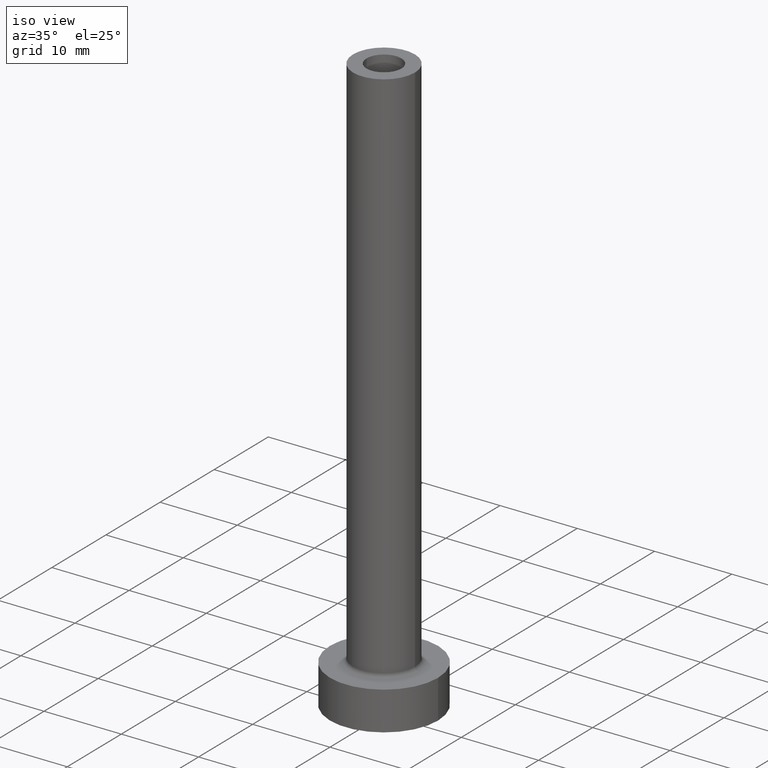
[diagram: clean part render]
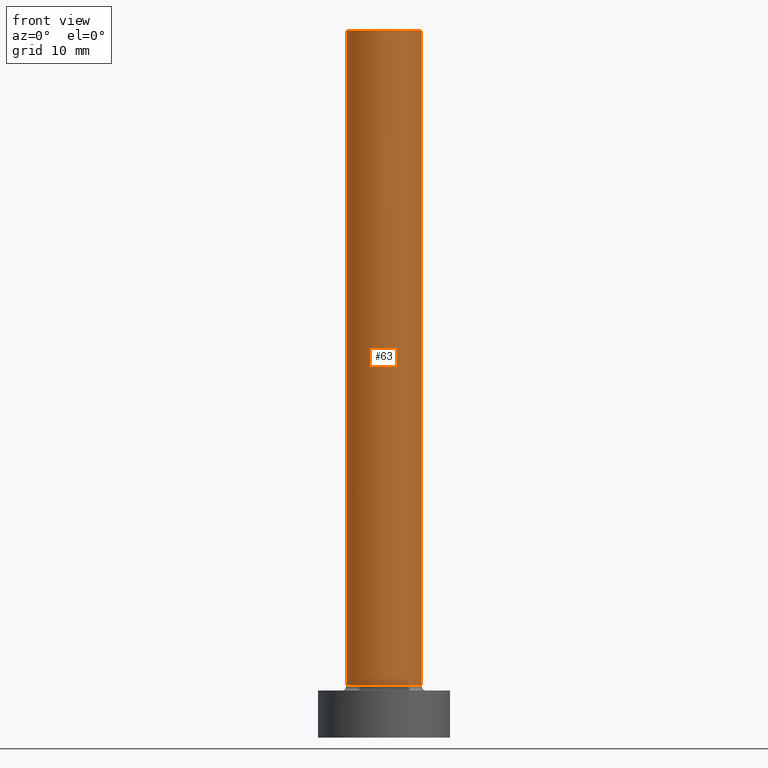
[diagram: tour spotlight — one face highlighted and labeled with its STEP entity id]
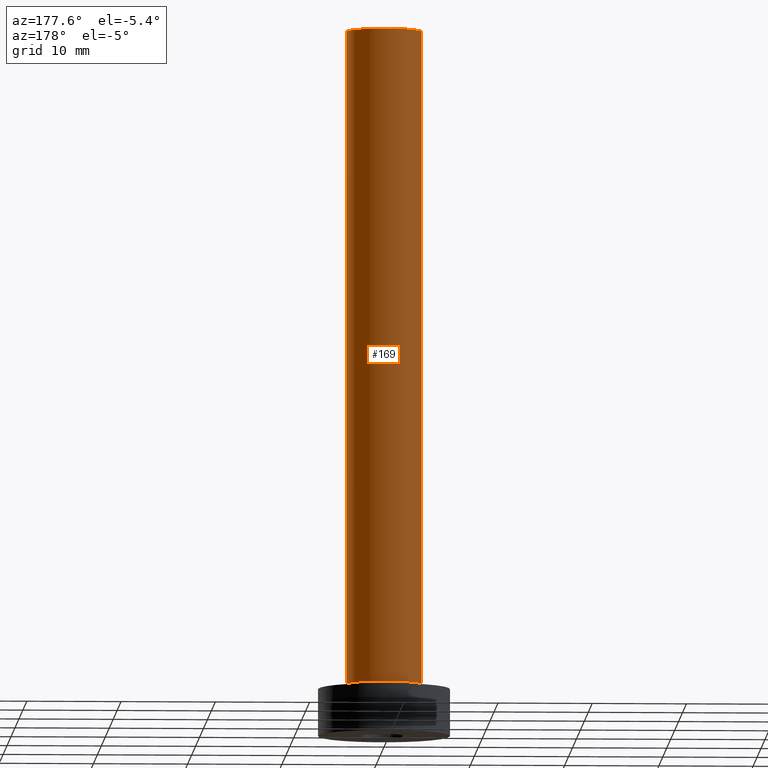
[diagram: tour spotlight — one face highlighted and labeled with its STEP entity id]
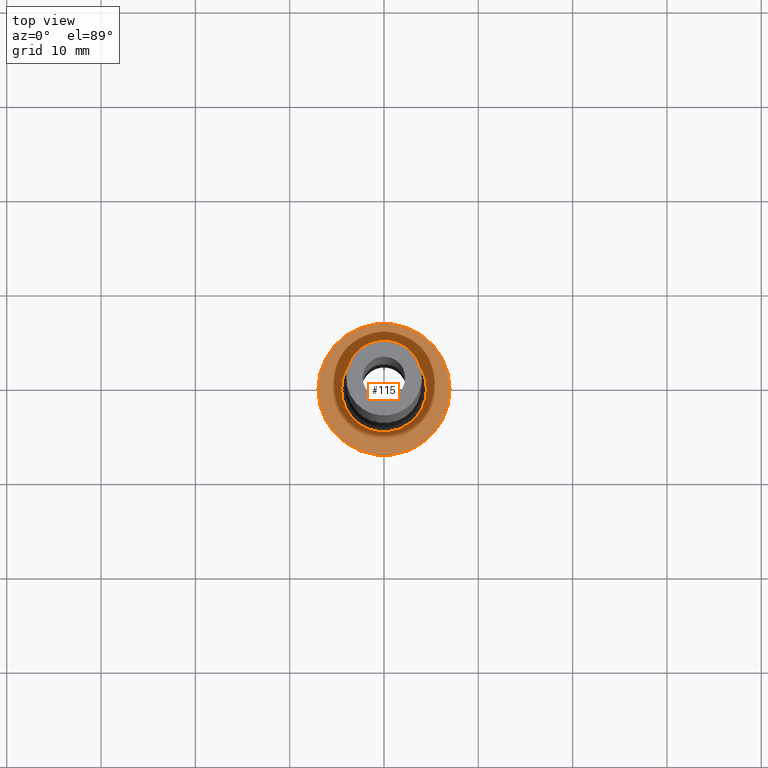
[diagram: tour spotlight — one face highlighted and labeled with its STEP entity id]
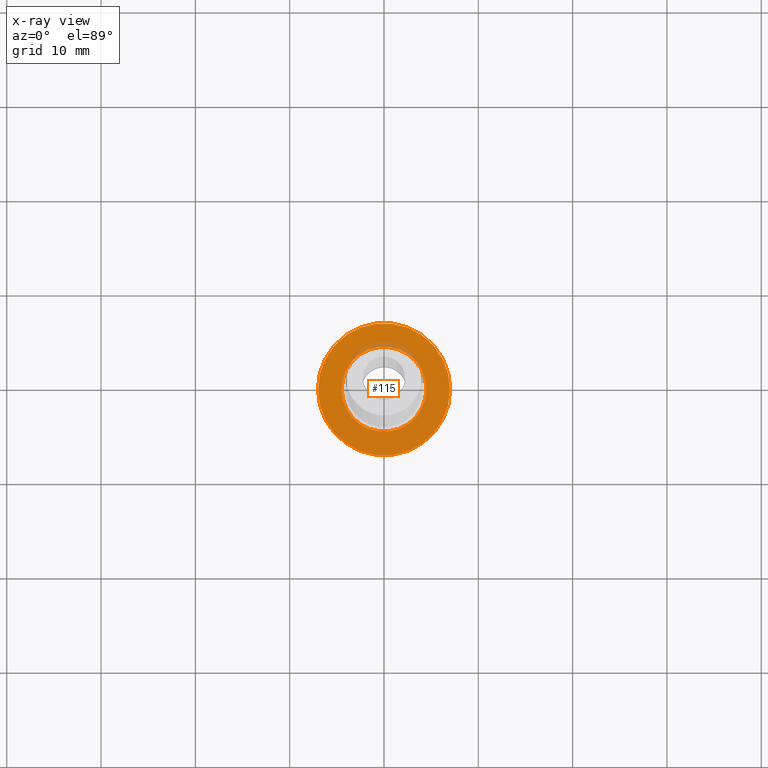
[diagram: x-ray of the same camera — body ghosted, this tour face saturated]
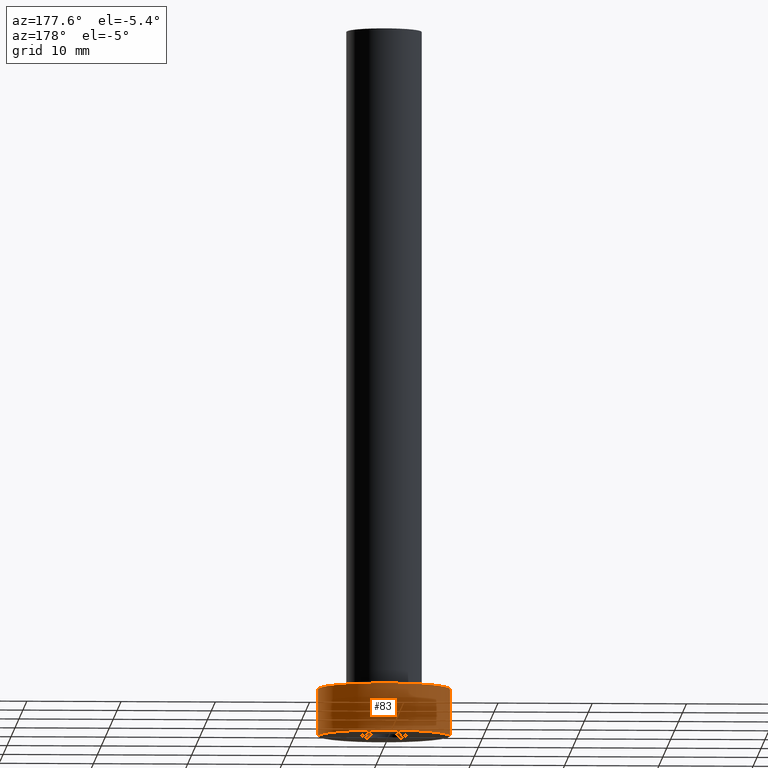
[diagram: tour spotlight — one face highlighted and labeled with its STEP entity id]
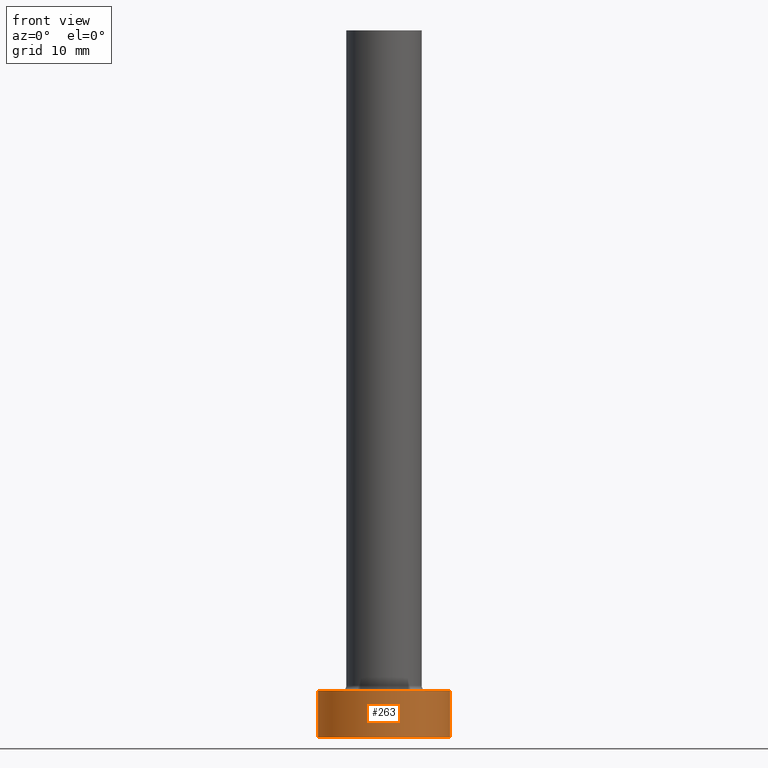
[diagram: tour spotlight — one face highlighted and labeled with its STEP entity id]
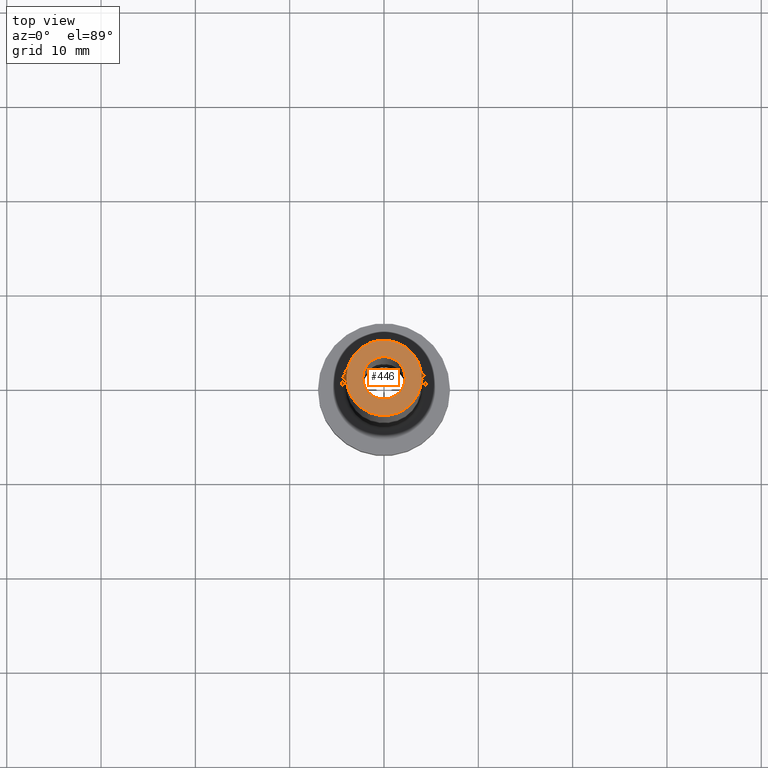
[diagram: tour spotlight — one face highlighted and labeled with its STEP entity id]
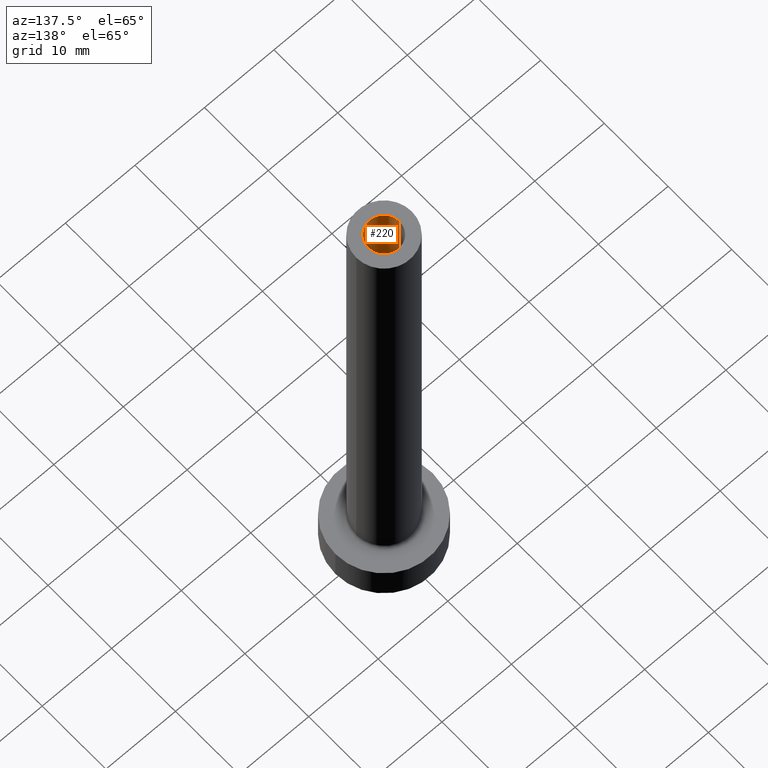
[diagram: tour spotlight — one face highlighted and labeled with its STEP entity id]
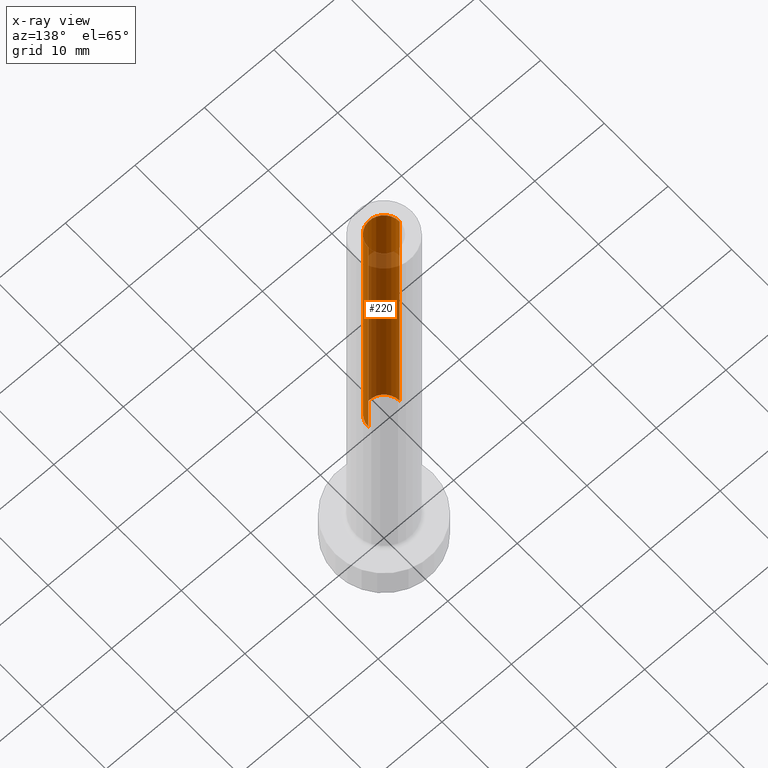
[diagram: x-ray of the same camera — body ghosted, this tour face saturated]
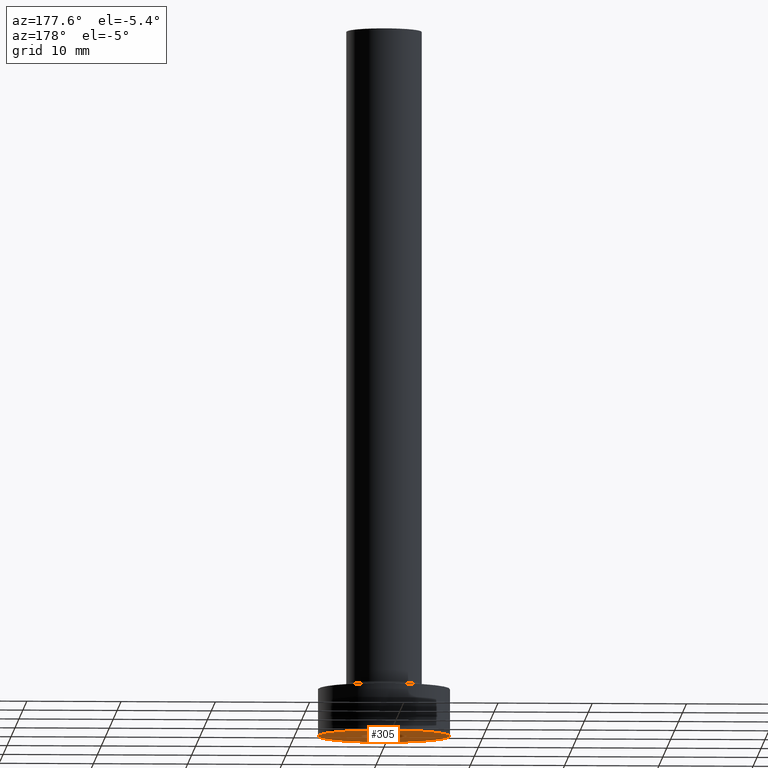
[diagram: tour spotlight — one face highlighted and labeled with its STEP entity id]
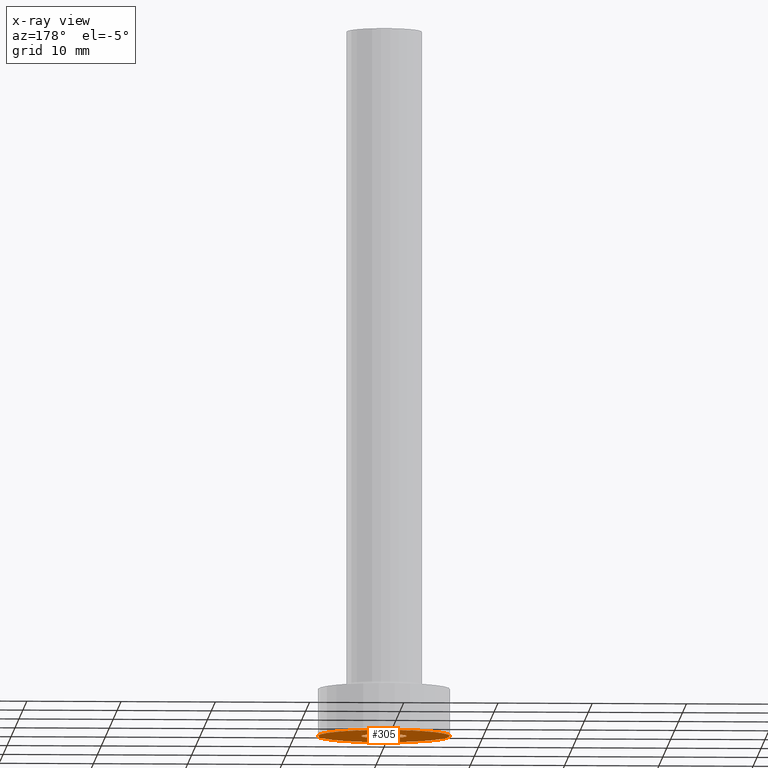
[diagram: x-ray of the same camera — body ghosted, this tour face saturated]
A machine part: a face-by-face anatomy tour. The part has 14 B-rep faces; the first image is the clean iso view, then the 8 largest visible faces are spotlighted one at a time (largest first), each with its STEP entity span.

Face 1 — front view, entity #63. In plain terms, the highlighted cylindrical surface (partial cylindrical patch) has radius 4 mm, axis along (-0, -0, -1).
Definition (entity closure, byte-faithful):
#21 = AXIS2_PLACEMENT_3D ( 'NONE', #275, #96, #95 ) ;
#28 = LINE ( 'NONE', #74, #149 ) ;
#30 = CARTESIAN_POINT ( 'NONE',  ( 4.000000000000000000, 4.898587196589412829E-16, 5.500000000000005329 ) ) ;
#41 = CARTESIAN_POINT ( 'NONE',  ( 0.000000000000000000, 0.000000000000000000, 75.00000000000001421 ) ) ;
#47 = CYLINDRICAL_SURFACE ( 'NONE', #422, 4.000000000000000000 ) ;
#55 = EDGE_CURVE ( 'NONE', #349, #193, #138, .T. ) ;
#63 = ADVANCED_FACE ( 'NONE', ( #378 ), #47, .T. ) ;
#74 = CARTESIAN_POINT ( 'NONE',  ( -4.000000000000000000, 0.000000000000000000, 75.00000000000001421 ) ) ;
#95 = DIRECTION ( 'NONE',  ( 1.000000000000000000, 0.000000000000000000, 0.000000000000000000 ) ) ;
#96 = DIRECTION ( 'NONE',  ( 0.000000000000000000, 0.000000000000000000, 1.000000000000000000 ) ) ;
#110 = ORIENTED_EDGE ( 'NONE', *, *, #136, .F. ) ;
#112 = DIRECTION ( 'NONE',  ( -0.000000000000000000, -0.000000000000000000, -1.000000000000000000 ) ) ;
#123 = CARTESIAN_POINT ( 'NONE',  ( 4.000000000000000000, 4.898587196589412829E-16, 75.00000000000001421 ) ) ;
#136 = EDGE_CURVE ( 'NONE', #182, #449, #414, .T. ) ;
#138 = CIRCLE ( 'NONE', #391, 4.000000000000000000 ) ;
#149 = VECTOR ( 'NONE', #428, 1000.000000000000000 ) ;
#182 = VERTEX_POINT ( 'NONE', #359 ) ;
#187 = EDGE_LOOP ( 'NONE', ( #427, #110, #240, #440 ) ) ;
#191 = VECTOR ( 'NONE', #112, 1000.000000000000000 ) ;
#193 = VERTEX_POINT ( 'NONE', #30 ) ;
#200 = CARTESIAN_POINT ( 'NONE',  ( 0.000000000000000000, 0.000000000000000000, 5.500000000000005329 ) ) ;
#202 = DIRECTION ( 'NONE',  ( 0.000000000000000000, 0.000000000000000000, 1.000000000000000000 ) ) ;
#240 = ORIENTED_EDGE ( 'NONE', *, *, #277, .T. ) ;
#275 = CARTESIAN_POINT ( 'NONE',  ( 0.000000000000000000, 0.000000000000000000, 75.00000000000001421 ) ) ;
#277 = EDGE_CURVE ( 'NONE', #182, #349, #28, .T. ) ;
#282 = CARTESIAN_POINT ( 'NONE',  ( 4.000000000000000000, 4.898587196589412829E-16, 75.00000000000001421 ) ) ;
#315 = LINE ( 'NONE', #282, #191 ) ;
#332 = DIRECTION ( 'NONE',  ( -1.000000000000000000, 0.000000000000000000, 0.000000000000000000 ) ) ;
#336 = DIRECTION ( 'NONE',  ( -0.000000000000000000, -0.000000000000000000, -1.000000000000000000 ) ) ;
#339 = EDGE_CURVE ( 'NONE', #449, #193, #315, .T. ) ;
#345 = DIRECTION ( 'NONE',  ( 1.000000000000000000, 0.000000000000000000, 0.000000000000000000 ) ) ;
#349 = VERTEX_POINT ( 'NONE', #401 ) ;
#359 = CARTESIAN_POINT ( 'NONE',  ( -4.000000000000000000, 0.000000000000000000, 75.00000000000001421 ) ) ;
#378 = FACE_OUTER_BOUND ( 'NONE', #187, .T. ) ;
#391 = AXIS2_PLACEMENT_3D ( 'NONE', #200, #202, #345 ) ;
#401 = CARTESIAN_POINT ( 'NONE',  ( -4.000000000000000000, 0.000000000000000000, 5.500000000000005329 ) ) ;
#414 = CIRCLE ( 'NONE', #21, 4.000000000000000000 ) ;
#422 = AXIS2_PLACEMENT_3D ( 'NONE', #41, #336, #332 ) ;
#427 = ORIENTED_EDGE ( 'NONE', *, *, #339, .F. ) ;
#428 = DIRECTION ( 'NONE',  ( -0.000000000000000000, -0.000000000000000000, -1.000000000000000000 ) ) ;
#440 = ORIENTED_EDGE ( 'NONE', *, *, #55, .T. ) ;
#449 = VERTEX_POINT ( 'NONE', #123 ) ;

Face 2 — auxiliary view, entity #169. In plain terms, the highlighted cylindrical surface (partial cylindrical patch) has radius 4 mm, axis along (-0, -0, -1).
Definition (entity closure, byte-faithful):
#5 = CARTESIAN_POINT ( 'NONE',  ( 0.000000000000000000, 0.000000000000000000, 5.500000000000005329 ) ) ;
#17 = CARTESIAN_POINT ( 'NONE',  ( 0.000000000000000000, 0.000000000000000000, 75.00000000000001421 ) ) ;
#28 = LINE ( 'NONE', #74, #149 ) ;
#30 = CARTESIAN_POINT ( 'NONE',  ( 4.000000000000000000, 4.898587196589412829E-16, 5.500000000000005329 ) ) ;
#40 = AXIS2_PLACEMENT_3D ( 'NONE', #17, #416, #374 ) ;
#44 = ORIENTED_EDGE ( 'NONE', *, *, #224, .T. ) ;
#61 = EDGE_CURVE ( 'NONE', #449, #182, #206, .T. ) ;
#65 = CARTESIAN_POINT ( 'NONE',  ( 0.000000000000000000, 0.000000000000000000, 75.00000000000001421 ) ) ;
#70 = CYLINDRICAL_SURFACE ( 'NONE', #324, 4.000000000000000000 ) ;
#74 = CARTESIAN_POINT ( 'NONE',  ( -4.000000000000000000, 0.000000000000000000, 75.00000000000001421 ) ) ;
#100 = AXIS2_PLACEMENT_3D ( 'NONE', #5, #317, #214 ) ;
#112 = DIRECTION ( 'NONE',  ( -0.000000000000000000, -0.000000000000000000, -1.000000000000000000 ) ) ;
#123 = CARTESIAN_POINT ( 'NONE',  ( 4.000000000000000000, 4.898587196589412829E-16, 75.00000000000001421 ) ) ;
#149 = VECTOR ( 'NONE', #428, 1000.000000000000000 ) ;
#169 = ADVANCED_FACE ( 'NONE', ( #389 ), #70, .T. ) ;
#182 = VERTEX_POINT ( 'NONE', #359 ) ;
#190 = CIRCLE ( 'NONE', #100, 4.000000000000000000 ) ;
#191 = VECTOR ( 'NONE', #112, 1000.000000000000000 ) ;
#193 = VERTEX_POINT ( 'NONE', #30 ) ;
#194 = ORIENTED_EDGE ( 'NONE', *, *, #339, .T. ) ;
#206 = CIRCLE ( 'NONE', #40, 4.000000000000000000 ) ;
#214 = DIRECTION ( 'NONE',  ( 1.000000000000000000, 0.000000000000000000, 0.000000000000000000 ) ) ;
#224 = EDGE_CURVE ( 'NONE', #193, #349, #190, .T. ) ;
#226 = DIRECTION ( 'NONE',  ( -1.000000000000000000, 0.000000000000000000, 0.000000000000000000 ) ) ;
#228 = EDGE_LOOP ( 'NONE', ( #294, #194, #44, #413 ) ) ;
#277 = EDGE_CURVE ( 'NONE', #182, #349, #28, .T. ) ;
#282 = CARTESIAN_POINT ( 'NONE',  ( 4.000000000000000000, 4.898587196589412829E-16, 75.00000000000001421 ) ) ;
#294 = ORIENTED_EDGE ( 'NONE', *, *, #61, .F. ) ;
#315 = LINE ( 'NONE', #282, #191 ) ;
#317 = DIRECTION ( 'NONE',  ( 0.000000000000000000, 0.000000000000000000, 1.000000000000000000 ) ) ;
#322 = DIRECTION ( 'NONE',  ( -0.000000000000000000, -0.000000000000000000, -1.000000000000000000 ) ) ;
#324 = AXIS2_PLACEMENT_3D ( 'NONE', #65, #322, #226 ) ;
#339 = EDGE_CURVE ( 'NONE', #449, #193, #315, .T. ) ;
#349 = VERTEX_POINT ( 'NONE', #401 ) ;
#359 = CARTESIAN_POINT ( 'NONE',  ( -4.000000000000000000, 0.000000000000000000, 75.00000000000001421 ) ) ;
#374 = DIRECTION ( 'NONE',  ( 1.000000000000000000, 0.000000000000000000, 0.000000000000000000 ) ) ;
#389 = FACE_OUTER_BOUND ( 'NONE', #228, .T. ) ;
#401 = CARTESIAN_POINT ( 'NONE',  ( -4.000000000000000000, 0.000000000000000000, 5.500000000000005329 ) ) ;
#413 = ORIENTED_EDGE ( 'NONE', *, *, #277, .F. ) ;
#416 = DIRECTION ( 'NONE',  ( 0.000000000000000000, 0.000000000000000000, 1.000000000000000000 ) ) ;
#428 = DIRECTION ( 'NONE',  ( -0.000000000000000000, -0.000000000000000000, -1.000000000000000000 ) ) ;
#449 = VERTEX_POINT ( 'NONE', #123 ) ;

Face 3 — top view, entity #115. An x-ray twin of the same camera follows (body ghosted, this face saturated) — the face is partly hidden behind the body. In plain terms, the highlighted planar face has unit normal (0, 0, 1).
Definition (entity closure, byte-faithful):
#4 = CARTESIAN_POINT ( 'NONE',  ( 0.000000000000000000, 0.000000000000000000, 5.000000000000000000 ) ) ;
#22 = AXIS2_PLACEMENT_3D ( 'NONE', #36, #147, #142 ) ;
#24 = ORIENTED_EDGE ( 'NONE', *, *, #232, .T. ) ;
#36 = CARTESIAN_POINT ( 'NONE',  ( 0.000000000000000000, 0.000000000000000000, 5.000000000000000000 ) ) ;
#45 = AXIS2_PLACEMENT_3D ( 'NONE', #285, #460, #435 ) ;
#62 = FACE_OUTER_BOUND ( 'NONE', #355, .T. ) ;
#92 = DIRECTION ( 'NONE',  ( 0.000000000000000000, 0.000000000000000000, 1.000000000000000000 ) ) ;
#115 = ADVANCED_FACE ( 'NONE', ( #419, #62 ), #310, .T. ) ;
#119 = CARTESIAN_POINT ( 'NONE',  ( -4.500000000000000888, 5.510910596163088569E-16, 5.000000000000002665 ) ) ;
#128 = AXIS2_PLACEMENT_3D ( 'NONE', #250, #181, #363 ) ;
#139 = DIRECTION ( 'NONE',  ( 1.000000000000000000, 0.000000000000000000, -0.000000000000000000 ) ) ;
#141 = CIRCLE ( 'NONE', #377, 4.500000000000000888 ) ;
#142 = DIRECTION ( 'NONE',  ( 1.000000000000000000, 0.000000000000000000, 0.000000000000000000 ) ) ;
#147 = DIRECTION ( 'NONE',  ( -0.000000000000000000, -0.000000000000000000, -1.000000000000000000 ) ) ;
#163 = DIRECTION ( 'NONE',  ( 1.000000000000000000, 0.000000000000000000, 0.000000000000000000 ) ) ;
#172 = CARTESIAN_POINT ( 'NONE',  ( 0.000000000000000000, 0.000000000000000000, 5.000000000000000000 ) ) ;
#181 = DIRECTION ( 'NONE',  ( 0.000000000000000000, 0.000000000000000000, 1.000000000000000000 ) ) ;
#189 = VERTEX_POINT ( 'NONE', #426 ) ;
#197 = EDGE_CURVE ( 'NONE', #436, #189, #280, .T. ) ;
#205 = EDGE_CURVE ( 'NONE', #189, #436, #356, .T. ) ;
#209 = ORIENTED_EDGE ( 'NONE', *, *, #385, .T. ) ;
#210 = AXIS2_PLACEMENT_3D ( 'NONE', #172, #92, #139 ) ;
#232 = EDGE_CURVE ( 'NONE', #283, #396, #364, .T. ) ;
#250 = CARTESIAN_POINT ( 'NONE',  ( 0.000000000000000000, 0.000000000000000000, 5.000000000000000000 ) ) ;
#251 = ORIENTED_EDGE ( 'NONE', *, *, #205, .T. ) ;
#257 = CARTESIAN_POINT ( 'NONE',  ( -7.000000000000000000, 0.000000000000000000, 5.000000000000000000 ) ) ;
#280 = CIRCLE ( 'NONE', #45, 7.000000000000000000 ) ;
#283 = VERTEX_POINT ( 'NONE', #119 ) ;
#285 = CARTESIAN_POINT ( 'NONE',  ( 0.000000000000000000, 0.000000000000000000, 5.000000000000000000 ) ) ;
#286 = EDGE_LOOP ( 'NONE', ( #209, #24 ) ) ;
#291 = DIRECTION ( 'NONE',  ( -0.000000000000000000, -0.000000000000000000, -1.000000000000000000 ) ) ;
#302 = CARTESIAN_POINT ( 'NONE',  ( 4.500000000000000888, 0.000000000000000000, 5.000000000000002665 ) ) ;
#310 = PLANE ( 'NONE',  #210 ) ;
#355 = EDGE_LOOP ( 'NONE', ( #393, #251 ) ) ;
#356 = CIRCLE ( 'NONE', #128, 7.000000000000000000 ) ;
#363 = DIRECTION ( 'NONE',  ( 1.000000000000000000, 0.000000000000000000, 0.000000000000000000 ) ) ;
#364 = CIRCLE ( 'NONE', #22, 4.500000000000000888 ) ;
#377 = AXIS2_PLACEMENT_3D ( 'NONE', #4, #291, #163 ) ;
#385 = EDGE_CURVE ( 'NONE', #396, #283, #141, .T. ) ;
#393 = ORIENTED_EDGE ( 'NONE', *, *, #197, .T. ) ;
#396 = VERTEX_POINT ( 'NONE', #302 ) ;
#419 = FACE_BOUND ( 'NONE', #286, .T. ) ;
#426 = CARTESIAN_POINT ( 'NONE',  ( 7.000000000000000000, 8.572527594031473190E-16, 5.000000000000000000 ) ) ;
#435 = DIRECTION ( 'NONE',  ( 1.000000000000000000, 0.000000000000000000, 0.000000000000000000 ) ) ;
#436 = VERTEX_POINT ( 'NONE', #257 ) ;
#460 = DIRECTION ( 'NONE',  ( 0.000000000000000000, 0.000000000000000000, 1.000000000000000000 ) ) ;

Face 4 — auxiliary view, entity #83. In plain terms, the highlighted cylindrical surface (partial cylindrical patch) has radius 7 mm, axis along (-0, -0, -1).
Definition (entity closure, byte-faithful):
#16 = CYLINDRICAL_SURFACE ( 'NONE', #253, 7.000000000000000000 ) ;
#26 = ORIENTED_EDGE ( 'NONE', *, *, #243, .T. ) ;
#29 = CARTESIAN_POINT ( 'NONE',  ( 7.000000000000000000, 8.572527594031473190E-16, 0.000000000000000000 ) ) ;
#83 = ADVANCED_FACE ( 'NONE', ( #344 ), #16, .T. ) ;
#93 = AXIS2_PLACEMENT_3D ( 'NONE', #103, #218, #192 ) ;
#98 = CARTESIAN_POINT ( 'NONE',  ( 7.000000000000000000, 8.572527594031473190E-16, 5.000000000000000000 ) ) ;
#101 = CIRCLE ( 'NONE', #93, 7.000000000000000000 ) ;
#103 = CARTESIAN_POINT ( 'NONE',  ( 0.000000000000000000, 0.000000000000000000, 0.000000000000000000 ) ) ;
#105 = EDGE_CURVE ( 'NONE', #436, #213, #387, .T. ) ;
#128 = AXIS2_PLACEMENT_3D ( 'NONE', #250, #181, #363 ) ;
#154 = ORIENTED_EDGE ( 'NONE', *, *, #205, .F. ) ;
#161 = DIRECTION ( 'NONE',  ( -0.000000000000000000, -0.000000000000000000, -1.000000000000000000 ) ) ;
#166 = EDGE_LOOP ( 'NONE', ( #154, #244, #26, #399 ) ) ;
#181 = DIRECTION ( 'NONE',  ( 0.000000000000000000, 0.000000000000000000, 1.000000000000000000 ) ) ;
#189 = VERTEX_POINT ( 'NONE', #426 ) ;
#192 = DIRECTION ( 'NONE',  ( 1.000000000000000000, 0.000000000000000000, 0.000000000000000000 ) ) ;
#205 = EDGE_CURVE ( 'NONE', #189, #436, #356, .T. ) ;
#208 = DIRECTION ( 'NONE',  ( -0.000000000000000000, -0.000000000000000000, -1.000000000000000000 ) ) ;
#212 = DIRECTION ( 'NONE',  ( -0.000000000000000000, -0.000000000000000000, -1.000000000000000000 ) ) ;
#213 = VERTEX_POINT ( 'NONE', #425 ) ;
#218 = DIRECTION ( 'NONE',  ( 0.000000000000000000, 0.000000000000000000, 1.000000000000000000 ) ) ;
#237 = VECTOR ( 'NONE', #208, 1000.000000000000000 ) ;
#243 = EDGE_CURVE ( 'NONE', #362, #213, #101, .T. ) ;
#244 = ORIENTED_EDGE ( 'NONE', *, *, #298, .T. ) ;
#250 = CARTESIAN_POINT ( 'NONE',  ( 0.000000000000000000, 0.000000000000000000, 5.000000000000000000 ) ) ;
#253 = AXIS2_PLACEMENT_3D ( 'NONE', #269, #161, #412 ) ;
#257 = CARTESIAN_POINT ( 'NONE',  ( -7.000000000000000000, 0.000000000000000000, 5.000000000000000000 ) ) ;
#269 = CARTESIAN_POINT ( 'NONE',  ( 0.000000000000000000, 0.000000000000000000, 5.000000000000000000 ) ) ;
#298 = EDGE_CURVE ( 'NONE', #189, #362, #351, .T. ) ;
#344 = FACE_OUTER_BOUND ( 'NONE', #166, .T. ) ;
#351 = LINE ( 'NONE', #98, #432 ) ;
#356 = CIRCLE ( 'NONE', #128, 7.000000000000000000 ) ;
#362 = VERTEX_POINT ( 'NONE', #29 ) ;
#363 = DIRECTION ( 'NONE',  ( 1.000000000000000000, 0.000000000000000000, 0.000000000000000000 ) ) ;
#382 = CARTESIAN_POINT ( 'NONE',  ( -7.000000000000000000, 0.000000000000000000, 5.000000000000000000 ) ) ;
#387 = LINE ( 'NONE', #382, #237 ) ;
#399 = ORIENTED_EDGE ( 'NONE', *, *, #105, .F. ) ;
#412 = DIRECTION ( 'NONE',  ( -1.000000000000000000, 0.000000000000000000, 0.000000000000000000 ) ) ;
#425 = CARTESIAN_POINT ( 'NONE',  ( -7.000000000000000000, 0.000000000000000000, 0.000000000000000000 ) ) ;
#426 = CARTESIAN_POINT ( 'NONE',  ( 7.000000000000000000, 8.572527594031473190E-16, 5.000000000000000000 ) ) ;
#432 = VECTOR ( 'NONE', #212, 1000.000000000000000 ) ;
#436 = VERTEX_POINT ( 'NONE', #257 ) ;

Face 5 — front view, entity #263. In plain terms, the highlighted cylindrical surface (partial cylindrical patch) has radius 7 mm, axis along (-0, -0, -1).
Definition (entity closure, byte-faithful):
#29 = CARTESIAN_POINT ( 'NONE',  ( 7.000000000000000000, 8.572527594031473190E-16, 0.000000000000000000 ) ) ;
#45 = AXIS2_PLACEMENT_3D ( 'NONE', #285, #460, #435 ) ;
#60 = AXIS2_PLACEMENT_3D ( 'NONE', #384, #392, #328 ) ;
#71 = ORIENTED_EDGE ( 'NONE', *, *, #197, .F. ) ;
#73 = EDGE_LOOP ( 'NONE', ( #325, #71, #442, #341 ) ) ;
#98 = CARTESIAN_POINT ( 'NONE',  ( 7.000000000000000000, 8.572527594031473190E-16, 5.000000000000000000 ) ) ;
#105 = EDGE_CURVE ( 'NONE', #436, #213, #387, .T. ) ;
#140 = CIRCLE ( 'NONE', #60, 7.000000000000000000 ) ;
#165 = EDGE_CURVE ( 'NONE', #213, #362, #140, .T. ) ;
#177 = AXIS2_PLACEMENT_3D ( 'NONE', #289, #358, #403 ) ;
#189 = VERTEX_POINT ( 'NONE', #426 ) ;
#197 = EDGE_CURVE ( 'NONE', #436, #189, #280, .T. ) ;
#208 = DIRECTION ( 'NONE',  ( -0.000000000000000000, -0.000000000000000000, -1.000000000000000000 ) ) ;
#212 = DIRECTION ( 'NONE',  ( -0.000000000000000000, -0.000000000000000000, -1.000000000000000000 ) ) ;
#213 = VERTEX_POINT ( 'NONE', #425 ) ;
#216 = CYLINDRICAL_SURFACE ( 'NONE', #177, 7.000000000000000000 ) ;
#237 = VECTOR ( 'NONE', #208, 1000.000000000000000 ) ;
#247 = FACE_OUTER_BOUND ( 'NONE', #73, .T. ) ;
#257 = CARTESIAN_POINT ( 'NONE',  ( -7.000000000000000000, 0.000000000000000000, 5.000000000000000000 ) ) ;
#263 = ADVANCED_FACE ( 'NONE', ( #247 ), #216, .T. ) ;
#280 = CIRCLE ( 'NONE', #45, 7.000000000000000000 ) ;
#285 = CARTESIAN_POINT ( 'NONE',  ( 0.000000000000000000, 0.000000000000000000, 5.000000000000000000 ) ) ;
#289 = CARTESIAN_POINT ( 'NONE',  ( 0.000000000000000000, 0.000000000000000000, 5.000000000000000000 ) ) ;
#298 = EDGE_CURVE ( 'NONE', #189, #362, #351, .T. ) ;
#325 = ORIENTED_EDGE ( 'NONE', *, *, #298, .F. ) ;
#328 = DIRECTION ( 'NONE',  ( 1.000000000000000000, 0.000000000000000000, 0.000000000000000000 ) ) ;
#341 = ORIENTED_EDGE ( 'NONE', *, *, #165, .T. ) ;
#351 = LINE ( 'NONE', #98, #432 ) ;
#358 = DIRECTION ( 'NONE',  ( -0.000000000000000000, -0.000000000000000000, -1.000000000000000000 ) ) ;
#362 = VERTEX_POINT ( 'NONE', #29 ) ;
#382 = CARTESIAN_POINT ( 'NONE',  ( -7.000000000000000000, 0.000000000000000000, 5.000000000000000000 ) ) ;
#384 = CARTESIAN_POINT ( 'NONE',  ( 0.000000000000000000, 0.000000000000000000, 0.000000000000000000 ) ) ;
#387 = LINE ( 'NONE', #382, #237 ) ;
#392 = DIRECTION ( 'NONE',  ( 0.000000000000000000, 0.000000000000000000, 1.000000000000000000 ) ) ;
#403 = DIRECTION ( 'NONE',  ( -1.000000000000000000, 0.000000000000000000, 0.000000000000000000 ) ) ;
#425 = CARTESIAN_POINT ( 'NONE',  ( -7.000000000000000000, 0.000000000000000000, 0.000000000000000000 ) ) ;
#426 = CARTESIAN_POINT ( 'NONE',  ( 7.000000000000000000, 8.572527594031473190E-16, 5.000000000000000000 ) ) ;
#432 = VECTOR ( 'NONE', #212, 1000.000000000000000 ) ;
#435 = DIRECTION ( 'NONE',  ( 1.000000000000000000, 0.000000000000000000, 0.000000000000000000 ) ) ;
#436 = VERTEX_POINT ( 'NONE', #257 ) ;
#442 = ORIENTED_EDGE ( 'NONE', *, *, #105, .T. ) ;
#460 = DIRECTION ( 'NONE',  ( 0.000000000000000000, 0.000000000000000000, 1.000000000000000000 ) ) ;

Face 6 — top view, entity #446. In plain terms, the highlighted planar face has unit normal (0, 0, 1).
Definition (entity closure, byte-faithful):
#17 = CARTESIAN_POINT ( 'NONE',  ( 0.000000000000000000, 0.000000000000000000, 75.00000000000001421 ) ) ;
#21 = AXIS2_PLACEMENT_3D ( 'NONE', #275, #96, #95 ) ;
#35 = AXIS2_PLACEMENT_3D ( 'NONE', #175, #137, #245 ) ;
#40 = AXIS2_PLACEMENT_3D ( 'NONE', #17, #416, #374 ) ;
#61 = EDGE_CURVE ( 'NONE', #449, #182, #206, .T. ) ;
#80 = ORIENTED_EDGE ( 'NONE', *, *, #144, .F. ) ;
#82 = DIRECTION ( 'NONE',  ( 1.000000000000000000, 0.000000000000000000, -0.000000000000000000 ) ) ;
#95 = DIRECTION ( 'NONE',  ( 1.000000000000000000, 0.000000000000000000, 0.000000000000000000 ) ) ;
#96 = DIRECTION ( 'NONE',  ( 0.000000000000000000, 0.000000000000000000, 1.000000000000000000 ) ) ;
#107 = EDGE_LOOP ( 'NONE', ( #388, #80 ) ) ;
#123 = CARTESIAN_POINT ( 'NONE',  ( 4.000000000000000000, 4.898587196589412829E-16, 75.00000000000001421 ) ) ;
#124 = EDGE_CURVE ( 'NONE', #233, #143, #312, .T. ) ;
#133 = DIRECTION ( 'NONE',  ( 1.000000000000000000, 0.000000000000000000, 0.000000000000000000 ) ) ;
#136 = EDGE_CURVE ( 'NONE', #182, #449, #414, .T. ) ;
#137 = DIRECTION ( 'NONE',  ( 0.000000000000000000, 0.000000000000000000, 1.000000000000000000 ) ) ;
#143 = VERTEX_POINT ( 'NONE', #350 ) ;
#144 = EDGE_CURVE ( 'NONE', #143, #233, #198, .T. ) ;
#171 = ORIENTED_EDGE ( 'NONE', *, *, #136, .T. ) ;
#174 = AXIS2_PLACEMENT_3D ( 'NONE', #348, #450, #133 ) ;
#175 = CARTESIAN_POINT ( 'NONE',  ( 0.000000000000000000, 0.000000000000000000, 75.00000000000001421 ) ) ;
#182 = VERTEX_POINT ( 'NONE', #359 ) ;
#198 = CIRCLE ( 'NONE', #35, 2.250000000000000000 ) ;
#206 = CIRCLE ( 'NONE', #40, 4.000000000000000000 ) ;
#223 = CARTESIAN_POINT ( 'NONE',  ( -2.250000000000000000, 0.000000000000000000, 75.00000000000001421 ) ) ;
#233 = VERTEX_POINT ( 'NONE', #223 ) ;
#245 = DIRECTION ( 'NONE',  ( 1.000000000000000000, 0.000000000000000000, 0.000000000000000000 ) ) ;
#264 = CARTESIAN_POINT ( 'NONE',  ( 0.000000000000000000, 0.000000000000000000, 75.00000000000001421 ) ) ;
#275 = CARTESIAN_POINT ( 'NONE',  ( 0.000000000000000000, 0.000000000000000000, 75.00000000000001421 ) ) ;
#297 = ORIENTED_EDGE ( 'NONE', *, *, #61, .T. ) ;
#299 = FACE_OUTER_BOUND ( 'NONE', #429, .T. ) ;
#312 = CIRCLE ( 'NONE', #174, 2.250000000000000000 ) ;
#348 = CARTESIAN_POINT ( 'NONE',  ( 0.000000000000000000, 0.000000000000000000, 75.00000000000001421 ) ) ;
#350 = CARTESIAN_POINT ( 'NONE',  ( 2.250000000000000000, 2.755455298081543792E-16, 75.00000000000001421 ) ) ;
#359 = CARTESIAN_POINT ( 'NONE',  ( -4.000000000000000000, 0.000000000000000000, 75.00000000000001421 ) ) ;
#374 = DIRECTION ( 'NONE',  ( 1.000000000000000000, 0.000000000000000000, 0.000000000000000000 ) ) ;
#388 = ORIENTED_EDGE ( 'NONE', *, *, #124, .F. ) ;
#405 = FACE_BOUND ( 'NONE', #107, .T. ) ;
#410 = DIRECTION ( 'NONE',  ( 0.000000000000000000, 0.000000000000000000, 1.000000000000000000 ) ) ;
#414 = CIRCLE ( 'NONE', #21, 4.000000000000000000 ) ;
#416 = DIRECTION ( 'NONE',  ( 0.000000000000000000, 0.000000000000000000, 1.000000000000000000 ) ) ;
#424 = AXIS2_PLACEMENT_3D ( 'NONE', #264, #410, #82 ) ;
#429 = EDGE_LOOP ( 'NONE', ( #171, #297 ) ) ;
#439 = PLANE ( 'NONE',  #424 ) ;
#446 = ADVANCED_FACE ( 'NONE', ( #405, #299 ), #439, .T. ) ;
#449 = VERTEX_POINT ( 'NONE', #123 ) ;
#450 = DIRECTION ( 'NONE',  ( 0.000000000000000000, 0.000000000000000000, 1.000000000000000000 ) ) ;

Face 7 — auxiliary view, entity #220. An x-ray twin of the same camera follows (body ghosted, this face saturated) — the face is partly hidden behind the body. In plain terms, the highlighted cylindrical surface (edge-blend (fillet) strip) has radius 2.25 mm, axis along (0, 0, -1).
Definition (entity closure, byte-faithful):
#49 = VECTOR ( 'NONE', #334, 1000.000000000000000 ) ;
#53 = CARTESIAN_POINT ( 'NONE',  ( 2.250000000000000000, 2.755455298081543792E-16, 30.00000000000001421 ) ) ;
#64 = AXIS2_PLACEMENT_3D ( 'NONE', #85, #167, #307 ) ;
#67 = DIRECTION ( 'NONE',  ( 0.000000000000000000, 0.000000000000000000, -1.000000000000000000 ) ) ;
#85 = CARTESIAN_POINT ( 'NONE',  ( 0.000000000000000000, 0.000000000000000000, 30.00000000000001421 ) ) ;
#91 = ORIENTED_EDGE ( 'NONE', *, *, #124, .T. ) ;
#97 = EDGE_CURVE ( 'NONE', #406, #308, #278, .T. ) ;
#102 = CARTESIAN_POINT ( 'NONE',  ( 2.250000000000000000, 2.755455298081543792E-16, 75.00000000000001421 ) ) ;
#114 = ORIENTED_EDGE ( 'NONE', *, *, #97, .F. ) ;
#124 = EDGE_CURVE ( 'NONE', #233, #143, #312, .T. ) ;
#133 = DIRECTION ( 'NONE',  ( 1.000000000000000000, 0.000000000000000000, 0.000000000000000000 ) ) ;
#143 = VERTEX_POINT ( 'NONE', #350 ) ;
#145 = FACE_OUTER_BOUND ( 'NONE', #148, .T. ) ;
#148 = EDGE_LOOP ( 'NONE', ( #91, #219, #114, #259 ) ) ;
#160 = CARTESIAN_POINT ( 'NONE',  ( -2.250000000000000000, 0.000000000000000000, 30.00000000000001421 ) ) ;
#167 = DIRECTION ( 'NONE',  ( 0.000000000000000000, 0.000000000000000000, 1.000000000000000000 ) ) ;
#174 = AXIS2_PLACEMENT_3D ( 'NONE', #348, #450, #133 ) ;
#183 = CARTESIAN_POINT ( 'NONE',  ( 0.000000000000000000, 0.000000000000000000, 75.00000000000001421 ) ) ;
#188 = DIRECTION ( 'NONE',  ( 0.000000000000000000, 0.000000000000000000, -1.000000000000000000 ) ) ;
#219 = ORIENTED_EDGE ( 'NONE', *, *, #249, .T. ) ;
#220 = ADVANCED_FACE ( 'NONE', ( #145 ), #398, .F. ) ;
#223 = CARTESIAN_POINT ( 'NONE',  ( -2.250000000000000000, 0.000000000000000000, 75.00000000000001421 ) ) ;
#233 = VERTEX_POINT ( 'NONE', #223 ) ;
#248 = LINE ( 'NONE', #102, #455 ) ;
#249 = EDGE_CURVE ( 'NONE', #143, #308, #248, .T. ) ;
#259 = ORIENTED_EDGE ( 'NONE', *, *, #360, .F. ) ;
#278 = CIRCLE ( 'NONE', #64, 2.250000000000000000 ) ;
#307 = DIRECTION ( 'NONE',  ( 1.000000000000000000, 0.000000000000000000, 0.000000000000000000 ) ) ;
#308 = VERTEX_POINT ( 'NONE', #53 ) ;
#312 = CIRCLE ( 'NONE', #174, 2.250000000000000000 ) ;
#319 = DIRECTION ( 'NONE',  ( -1.000000000000000000, 0.000000000000000000, 0.000000000000000000 ) ) ;
#331 = CARTESIAN_POINT ( 'NONE',  ( -2.250000000000000000, 0.000000000000000000, 75.00000000000001421 ) ) ;
#334 = DIRECTION ( 'NONE',  ( 0.000000000000000000, 0.000000000000000000, -1.000000000000000000 ) ) ;
#348 = CARTESIAN_POINT ( 'NONE',  ( 0.000000000000000000, 0.000000000000000000, 75.00000000000001421 ) ) ;
#350 = CARTESIAN_POINT ( 'NONE',  ( 2.250000000000000000, 2.755455298081543792E-16, 75.00000000000001421 ) ) ;
#360 = EDGE_CURVE ( 'NONE', #233, #406, #459, .T. ) ;
#398 = CYLINDRICAL_SURFACE ( 'NONE', #447, 2.250000000000000000 ) ;
#406 = VERTEX_POINT ( 'NONE', #160 ) ;
#447 = AXIS2_PLACEMENT_3D ( 'NONE', #183, #188, #319 ) ;
#450 = DIRECTION ( 'NONE',  ( 0.000000000000000000, 0.000000000000000000, 1.000000000000000000 ) ) ;
#455 = VECTOR ( 'NONE', #67, 1000.000000000000000 ) ;
#459 = LINE ( 'NONE', #331, #49 ) ;

Face 8 — auxiliary view, entity #305. An x-ray twin of the same camera follows (body ghosted, this face saturated) — the face is partly hidden behind the body. In plain terms, the highlighted planar face has unit normal (0, 0, 1).
Definition (entity closure, byte-faithful):
#3 = EDGE_LOOP ( 'NONE', ( #32, #252 ) ) ;
#11 = CIRCLE ( 'NONE', #238, 2.399999999999999911 ) ;
#29 = CARTESIAN_POINT ( 'NONE',  ( 7.000000000000000000, 8.572527594031473190E-16, 0.000000000000000000 ) ) ;
#32 = ORIENTED_EDGE ( 'NONE', *, *, #373, .F. ) ;
#50 = FACE_BOUND ( 'NONE', #3, .T. ) ;
#56 = DIRECTION ( 'NONE',  ( 1.000000000000000000, 0.000000000000000000, -0.000000000000000000 ) ) ;
#58 = CARTESIAN_POINT ( 'NONE',  ( -2.399999999999999911, 0.000000000000000000, 0.000000000000000000 ) ) ;
#60 = AXIS2_PLACEMENT_3D ( 'NONE', #384, #392, #328 ) ;
#93 = AXIS2_PLACEMENT_3D ( 'NONE', #103, #218, #192 ) ;
#101 = CIRCLE ( 'NONE', #93, 7.000000000000000000 ) ;
#103 = CARTESIAN_POINT ( 'NONE',  ( 0.000000000000000000, 0.000000000000000000, 0.000000000000000000 ) ) ;
#104 = ORIENTED_EDGE ( 'NONE', *, *, #165, .F. ) ;
#117 = DIRECTION ( 'NONE',  ( 1.000000000000000000, 0.000000000000000000, 0.000000000000000000 ) ) ;
#126 = EDGE_LOOP ( 'NONE', ( #104, #271 ) ) ;
#134 = CARTESIAN_POINT ( 'NONE',  ( 0.000000000000000000, 0.000000000000000000, 0.000000000000000000 ) ) ;
#140 = CIRCLE ( 'NONE', #60, 7.000000000000000000 ) ;
#165 = EDGE_CURVE ( 'NONE', #213, #362, #140, .T. ) ;
#184 = VERTEX_POINT ( 'NONE', #186 ) ;
#186 = CARTESIAN_POINT ( 'NONE',  ( 2.399999999999999911, 2.939152317953647106E-16, 0.000000000000000000 ) ) ;
#192 = DIRECTION ( 'NONE',  ( 1.000000000000000000, 0.000000000000000000, 0.000000000000000000 ) ) ;
#213 = VERTEX_POINT ( 'NONE', #425 ) ;
#218 = DIRECTION ( 'NONE',  ( 0.000000000000000000, 0.000000000000000000, 1.000000000000000000 ) ) ;
#222 = DIRECTION ( 'NONE',  ( -0.000000000000000000, -0.000000000000000000, -1.000000000000000000 ) ) ;
#225 = DIRECTION ( 'NONE',  ( -0.000000000000000000, -0.000000000000000000, -1.000000000000000000 ) ) ;
#238 = AXIS2_PLACEMENT_3D ( 'NONE', #411, #222, #372 ) ;
#242 = DIRECTION ( 'NONE',  ( 0.000000000000000000, 0.000000000000000000, 1.000000000000000000 ) ) ;
#243 = EDGE_CURVE ( 'NONE', #362, #213, #101, .T. ) ;
#252 = ORIENTED_EDGE ( 'NONE', *, *, #342, .F. ) ;
#261 = CIRCLE ( 'NONE', #352, 2.399999999999999911 ) ;
#271 = ORIENTED_EDGE ( 'NONE', *, *, #243, .F. ) ;
#305 = ADVANCED_FACE ( 'NONE', ( #50, #354 ), #347, .F. ) ;
#323 = CARTESIAN_POINT ( 'NONE',  ( 0.000000000000000000, 0.000000000000000000, 0.000000000000000000 ) ) ;
#328 = DIRECTION ( 'NONE',  ( 1.000000000000000000, 0.000000000000000000, 0.000000000000000000 ) ) ;
#329 = VERTEX_POINT ( 'NONE', #58 ) ;
#342 = EDGE_CURVE ( 'NONE', #184, #329, #261, .T. ) ;
#347 = PLANE ( 'NONE',  #451 ) ;
#352 = AXIS2_PLACEMENT_3D ( 'NONE', #323, #225, #117 ) ;
#354 = FACE_OUTER_BOUND ( 'NONE', #126, .T. ) ;
#362 = VERTEX_POINT ( 'NONE', #29 ) ;
#372 = DIRECTION ( 'NONE',  ( 1.000000000000000000, 0.000000000000000000, 0.000000000000000000 ) ) ;
#373 = EDGE_CURVE ( 'NONE', #329, #184, #11, .T. ) ;
#384 = CARTESIAN_POINT ( 'NONE',  ( 0.000000000000000000, 0.000000000000000000, 0.000000000000000000 ) ) ;
#392 = DIRECTION ( 'NONE',  ( 0.000000000000000000, 0.000000000000000000, 1.000000000000000000 ) ) ;
#411 = CARTESIAN_POINT ( 'NONE',  ( 0.000000000000000000, 0.000000000000000000, 0.000000000000000000 ) ) ;
#425 = CARTESIAN_POINT ( 'NONE',  ( -7.000000000000000000, 0.000000000000000000, 0.000000000000000000 ) ) ;
#451 = AXIS2_PLACEMENT_3D ( 'NONE', #134, #242, #56 ) ;